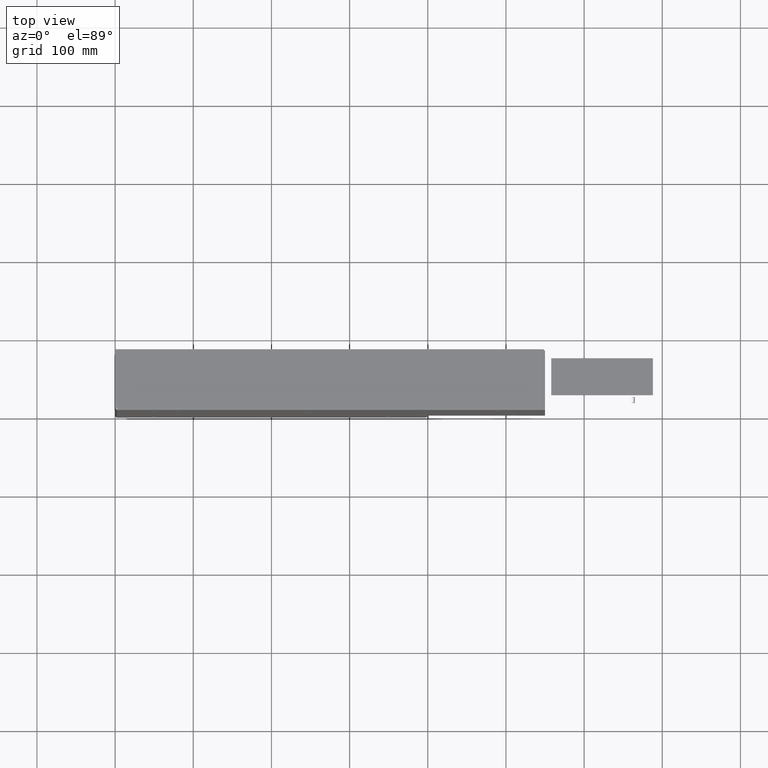
[diagram: clean part render]
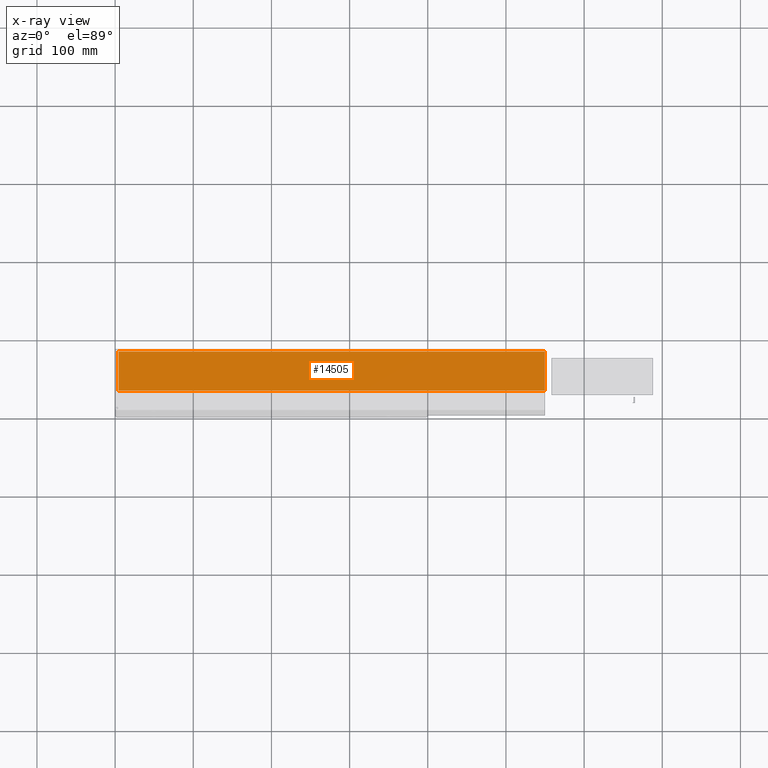
[diagram: x-ray — body ghosted, one internal face saturated and labeled with its STEP entity id]
A machine part, top view, then the same camera in x-ray: the body is ghosted and one INTERNAL B-rep face — a face not visible from any outside direction — is saturated and labeled: STEP entity #14505.
In plain terms, the highlighted planar face has unit normal (0, 0, 1).
Its self-contained STEP definition (entity closure, byte-faithful):
#14341=DIRECTION('',(0.E0,1.E0,0.E0));
#14342=VECTOR('',#14341,5.E1);
#14343=CARTESIAN_POINT('',(2.E0,0.E0,-2.725E2));
#14344=LINE('',#14343,#14342);
#14376=DIRECTION('',(0.E0,0.E0,1.E0));
#14377=VECTOR('',#14376,5.45E2);
#14378=CARTESIAN_POINT('',(2.E0,5.E1,-2.725E2));
#14379=LINE('',#14378,#14377);
#14383=DIRECTION('',(0.E0,0.E0,1.E0));
#14384=VECTOR('',#14383,5.45E2);
#14385=CARTESIAN_POINT('',(2.E0,0.E0,-2.725E2));
#14386=LINE('',#14385,#14384);
#14411=DIRECTION('',(0.E0,1.E0,0.E0));
#14412=VECTOR('',#14411,5.E1);
#14413=CARTESIAN_POINT('',(2.E0,0.E0,2.725E2));
#14414=LINE('',#14413,#14412);
#14419=CARTESIAN_POINT('',(2.E0,0.E0,-2.725E2));
#14421=VERTEX_POINT('',#14419);
#14422=CARTESIAN_POINT('',(2.E0,5.E1,-2.725E2));
#14423=VERTEX_POINT('',#14422);
#14427=CARTESIAN_POINT('',(2.E0,0.E0,2.725E2));
#14429=VERTEX_POINT('',#14427);
#14430=CARTESIAN_POINT('',(2.E0,5.E1,2.725E2));
#14431=VERTEX_POINT('',#14430);
#14493=CARTESIAN_POINT('',(2.E0,0.E0,-2.725E2));
#14494=DIRECTION('',(1.E0,0.E0,0.E0));
#14495=DIRECTION('',(0.E0,1.E0,0.E0));
#14496=AXIS2_PLACEMENT_3D('',#14493,#14494,#14495);
#14497=PLANE('',#14496);
#14498=ORIENTED_EDGE('',*,*,#14441,.F.);
#14499=ORIENTED_EDGE('',*,*,#14460,.T.);
#14501=ORIENTED_EDGE('',*,*,#14500,.T.);
#14502=ORIENTED_EDGE('',*,*,#14485,.F.);
#14503=EDGE_LOOP('',(#14498,#14499,#14501,#14502));
#14504=FACE_OUTER_BOUND('',#14503,.F.);
#14441=EDGE_CURVE('',#14421,#14423,#14344,.T.);
#14460=EDGE_CURVE('',#14421,#14429,#14386,.T.);
#14485=EDGE_CURVE('',#14423,#14431,#14379,.T.);
#14500=EDGE_CURVE('',#14429,#14431,#14414,.T.);
#14505=ADVANCED_FACE('',(#14504),#14497,.T.);